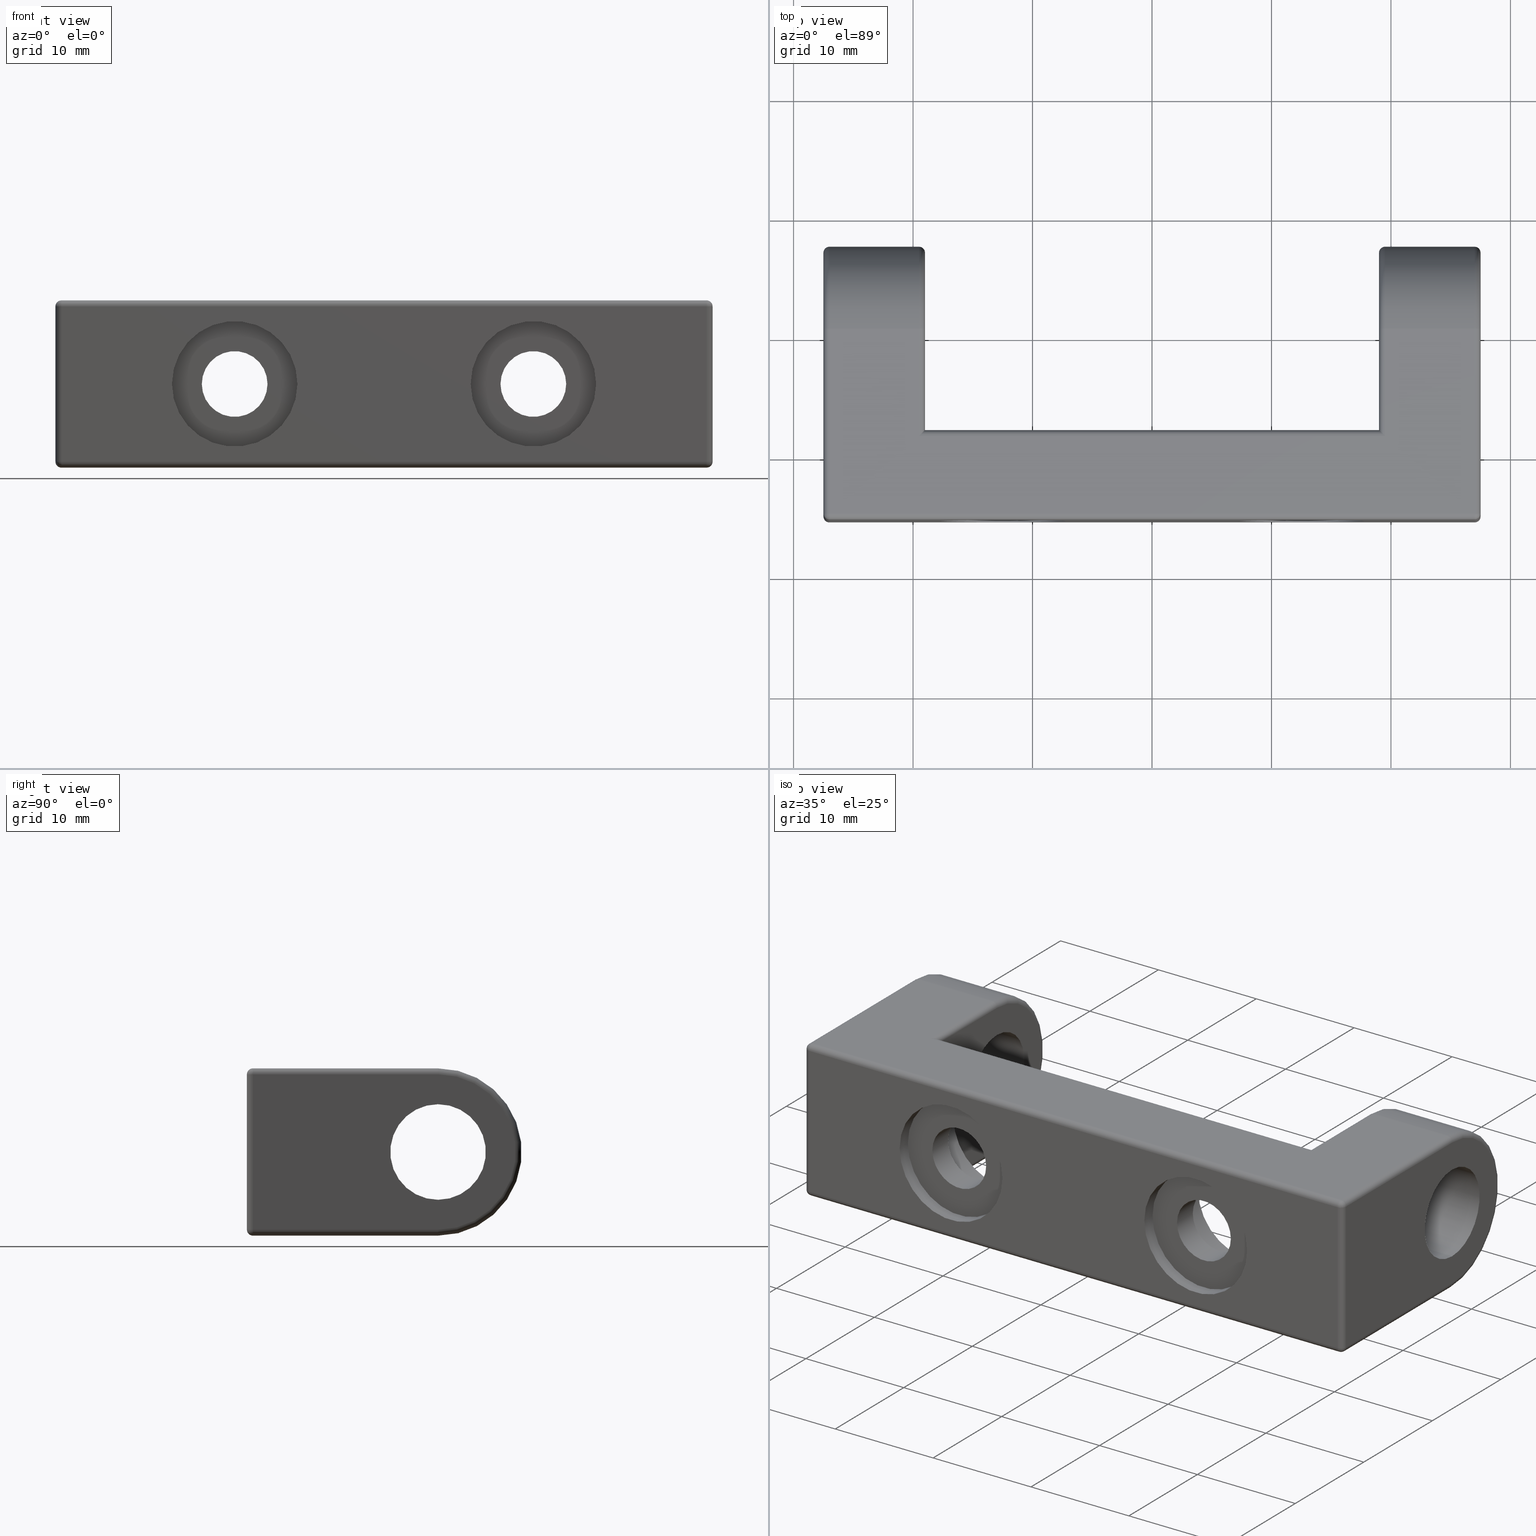
[diagram: canonical four-view strip — front | top / right | iso, engineering-drawing reading convention]
A machine part, canonical four-view strip (front | top / right | iso — engineering-drawing reading convention). The complete STEP part file that produces these views, byte-faithful:
ISO-10303-21;
HEADER;
/* Generated by software containing ST-Developer
 * from STEP Tools, Inc. (www.steptools.com) 
 */

FILE_DESCRIPTION(
/* description */ ('SEMICERNIERA FISSA C.2108 ALL.ANOD.ARG.'),
/* implementation_level */ '2;1');

FILE_NAME(
/* name */ 
'Q:\\Catalogo\\2_Accessori Dierre\\Per Download Web e catalogo cartace
o\\CATALOGO ACCESSORI PER RIPARI\\PAGINA 58\\CCRAA0000012.stp',
/* time_stamp */ '2018-11-08T17:54:37+01:00',
/* author */ ('fzagni'),
/* organization */ (''),
/* preprocessor_version */ 'ST-DEVELOPER v16.1',
/* originating_system */ 'Autodesk Inventor 2016',
/* authorisation */ '');

FILE_SCHEMA (('AUTOMOTIVE_DESIGN { 1 0 10303 214 3 1 1 }'));
ENDSEC;

DATA;
#10=MECHANICAL_DESIGN_GEOMETRIC_PRESENTATION_REPRESENTATION('',(#13),#1141);
#11=SHAPE_REPRESENTATION_RELATIONSHIP('SRR','None',#1150,#12);
#12=ADVANCED_BREP_SHAPE_REPRESENTATION('',(#14),#1140);
#13=STYLED_ITEM('',(#1159),#14);
#14=MANIFOLD_SOLID_BREP('Solido1',#645);
#15=SPHERICAL_SURFACE('',#675,0.499999999999998);
#16=SPHERICAL_SURFACE('',#679,0.500000000000003);
#17=SPHERICAL_SURFACE('',#684,0.499999999999998);
#18=SPHERICAL_SURFACE('',#688,0.499999999999998);
#19=FACE_BOUND('',#110,.T.);
#20=FACE_BOUND('',#112,.T.);
#21=FACE_BOUND('',#113,.T.);
#22=FACE_BOUND('',#130,.T.);
#23=FACE_BOUND('',#132,.T.);
#24=FACE_BOUND('',#134,.T.);
#25=FACE_BOUND('',#135,.T.);
#26=FACE_BOUND('',#137,.T.);
#27=FACE_BOUND('',#139,.T.);
#28=FACE_BOUND('',#141,.T.);
#29=FACE_BOUND('',#143,.T.);
#30=FACE_BOUND('',#145,.T.);
#31=FACE_BOUND('',#147,.T.);
#32=FACE_BOUND('',#149,.T.);
#33=FACE_BOUND('',#151,.T.);
#34=FACE_BOUND('',#153,.T.);
#35=FACE_BOUND('',#155,.T.);
#36=FACE_BOUND('',#157,.T.);
#37=FACE_BOUND('',#160,.T.);
#38=FACE_BOUND('',#162,.T.);
#39=PLANE('',#669);
#40=PLANE('',#670);
#41=PLANE('',#672);
#42=PLANE('',#709);
#43=PLANE('',#711);
#44=PLANE('',#713);
#45=PLANE('',#718);
#46=PLANE('',#722);
#47=PLANE('',#724);
#48=PLANE('',#729);
#49=PLANE('',#734);
#50=PLANE('',#736);
#51=TOROIDAL_SURFACE('',#655,6.5,0.5);
#52=TOROIDAL_SURFACE('',#662,6.5,0.5);
#53=TOROIDAL_SURFACE('',#695,6.5,0.5);
#54=TOROIDAL_SURFACE('',#703,6.5,0.5);
#55=FACE_OUTER_BOUND('',#99,.T.);
#56=FACE_OUTER_BOUND('',#100,.T.);
#57=FACE_OUTER_BOUND('',#101,.T.);
#58=FACE_OUTER_BOUND('',#102,.T.);
#59=FACE_OUTER_BOUND('',#103,.T.);
#60=FACE_OUTER_BOUND('',#104,.T.);
#61=FACE_OUTER_BOUND('',#105,.T.);
#62=FACE_OUTER_BOUND('',#106,.T.);
#63=FACE_OUTER_BOUND('',#107,.T.);
#64=FACE_OUTER_BOUND('',#108,.T.);
#65=FACE_OUTER_BOUND('',#109,.T.);
#66=FACE_OUTER_BOUND('',#111,.T.);
#67=FACE_OUTER_BOUND('',#114,.T.);
#68=FACE_OUTER_BOUND('',#115,.T.);
#69=FACE_OUTER_BOUND('',#116,.T.);
#70=FACE_OUTER_BOUND('',#117,.T.);
#71=FACE_OUTER_BOUND('',#118,.T.);
#72=FACE_OUTER_BOUND('',#119,.T.);
#73=FACE_OUTER_BOUND('',#120,.T.);
#74=FACE_OUTER_BOUND('',#121,.T.);
#75=FACE_OUTER_BOUND('',#122,.T.);
#76=FACE_OUTER_BOUND('',#123,.T.);
#77=FACE_OUTER_BOUND('',#124,.T.);
#78=FACE_OUTER_BOUND('',#125,.T.);
#79=FACE_OUTER_BOUND('',#126,.T.);
#80=FACE_OUTER_BOUND('',#127,.T.);
#81=FACE_OUTER_BOUND('',#128,.T.);
#82=FACE_OUTER_BOUND('',#129,.T.);
#83=FACE_OUTER_BOUND('',#131,.T.);
#84=FACE_OUTER_BOUND('',#133,.T.);
#85=FACE_OUTER_BOUND('',#136,.T.);
#86=FACE_OUTER_BOUND('',#138,.T.);
#87=FACE_OUTER_BOUND('',#140,.T.);
#88=FACE_OUTER_BOUND('',#142,.T.);
#89=FACE_OUTER_BOUND('',#144,.T.);
#90=FACE_OUTER_BOUND('',#146,.T.);
#91=FACE_OUTER_BOUND('',#148,.T.);
#92=FACE_OUTER_BOUND('',#150,.T.);
#93=FACE_OUTER_BOUND('',#152,.T.);
#94=FACE_OUTER_BOUND('',#154,.T.);
#95=FACE_OUTER_BOUND('',#156,.T.);
#96=FACE_OUTER_BOUND('',#158,.T.);
#97=FACE_OUTER_BOUND('',#159,.T.);
#98=FACE_OUTER_BOUND('',#161,.T.);
#99=EDGE_LOOP('',(#413,#414,#415,#416));
#100=EDGE_LOOP('',(#417,#418,#419,#420));
#101=EDGE_LOOP('',(#421,#422,#423,#424));
#102=EDGE_LOOP('',(#425,#426,#427,#428));
#103=EDGE_LOOP('',(#429,#430,#431,#432));
#104=EDGE_LOOP('',(#433,#434,#435,#436));
#105=EDGE_LOOP('',(#437,#438,#439,#440));
#106=EDGE_LOOP('',(#441,#442,#443,#444));
#107=EDGE_LOOP('',(#445,#446,#447,#448));
#108=EDGE_LOOP('',(#449,#450,#451,#452,#453,#454,#455,#456));
#109=EDGE_LOOP('',(#457,#458,#459,#460));
#110=EDGE_LOOP('',(#461));
#111=EDGE_LOOP('',(#462,#463,#464,#465));
#112=EDGE_LOOP('',(#466));
#113=EDGE_LOOP('',(#467));
#114=EDGE_LOOP('',(#468,#469,#470));
#115=EDGE_LOOP('',(#471,#472,#473));
#116=EDGE_LOOP('',(#474,#475,#476,#477));
#117=EDGE_LOOP('',(#478,#479,#480));
#118=EDGE_LOOP('',(#481,#482,#483));
#119=EDGE_LOOP('',(#484,#485,#486,#487));
#120=EDGE_LOOP('',(#488,#489,#490,#491));
#121=EDGE_LOOP('',(#492,#493,#494,#495));
#122=EDGE_LOOP('',(#496,#497,#498,#499));
#123=EDGE_LOOP('',(#500,#501,#502,#503));
#124=EDGE_LOOP('',(#504,#505,#506,#507));
#125=EDGE_LOOP('',(#508,#509,#510,#511));
#126=EDGE_LOOP('',(#512,#513,#514,#515));
#127=EDGE_LOOP('',(#516,#517,#518,#519));
#128=EDGE_LOOP('',(#520,#521,#522,#523));
#129=EDGE_LOOP('',(#524,#525,#526,#527));
#130=EDGE_LOOP('',(#528));
#131=EDGE_LOOP('',(#529,#530,#531,#532));
#132=EDGE_LOOP('',(#533));
#133=EDGE_LOOP('',(#534,#535,#536,#537));
#134=EDGE_LOOP('',(#538));
#135=EDGE_LOOP('',(#539));
#136=EDGE_LOOP('',(#540));
#137=EDGE_LOOP('',(#541));
#138=EDGE_LOOP('',(#542));
#139=EDGE_LOOP('',(#543));
#140=EDGE_LOOP('',(#544));
#141=EDGE_LOOP('',(#545));
#142=EDGE_LOOP('',(#546));
#143=EDGE_LOOP('',(#547));
#144=EDGE_LOOP('',(#548));
#145=EDGE_LOOP('',(#549));
#146=EDGE_LOOP('',(#550));
#147=EDGE_LOOP('',(#551));
#148=EDGE_LOOP('',(#552));
#149=EDGE_LOOP('',(#553));
#150=EDGE_LOOP('',(#554));
#151=EDGE_LOOP('',(#555));
#152=EDGE_LOOP('',(#556));
#153=EDGE_LOOP('',(#557));
#154=EDGE_LOOP('',(#558));
#155=EDGE_LOOP('',(#559));
#156=EDGE_LOOP('',(#560,#561,#562,#563));
#157=EDGE_LOOP('',(#564));
#158=EDGE_LOOP('',(#565,#566,#567,#568,#569,#570,#571,#572));
#159=EDGE_LOOP('',(#573));
#160=EDGE_LOOP('',(#574));
#161=EDGE_LOOP('',(#575));
#162=EDGE_LOOP('',(#576));
#163=ELLIPSE('',#649,0.707106781186547,0.5);
#164=ELLIPSE('',#651,0.707106781186546,0.5);
#165=ELLIPSE('',#654,0.707106781186548,0.5);
#166=ELLIPSE('',#661,0.707106781186546,0.5);
#167=CIRCLE('',#648,0.5);
#168=CIRCLE('',#653,0.5);
#169=CIRCLE('',#656,0.500000000000003);
#170=CIRCLE('',#657,7.);
#171=CIRCLE('',#658,6.5);
#172=CIRCLE('',#663,0.5);
#173=CIRCLE('',#664,7.);
#174=CIRCLE('',#665,6.5);
#175=CIRCLE('',#668,7.);
#176=CIRCLE('',#671,4.);
#177=CIRCLE('',#673,5.);
#178=CIRCLE('',#674,5.);
#179=CIRCLE('',#676,0.5);
#180=CIRCLE('',#677,0.499999999999998);
#181=CIRCLE('',#678,0.5);
#182=CIRCLE('',#680,0.499999999999998);
#183=CIRCLE('',#681,0.500000000000003);
#184=CIRCLE('',#682,0.5);
#185=CIRCLE('',#685,0.499999999999998);
#186=CIRCLE('',#686,0.499999999999998);
#187=CIRCLE('',#687,0.5);
#188=CIRCLE('',#689,0.5);
#189=CIRCLE('',#690,0.499999999999998);
#190=CIRCLE('',#691,0.5);
#191=CIRCLE('',#694,0.499999999999998);
#192=CIRCLE('',#696,0.500000000000003);
#193=CIRCLE('',#697,6.5);
#194=CIRCLE('',#702,0.499999999999998);
#195=CIRCLE('',#704,0.499999999999998);
#196=CIRCLE('',#705,7.);
#197=CIRCLE('',#706,6.5);
#198=CIRCLE('',#710,4.);
#199=CIRCLE('',#712,4.);
#200=CIRCLE('',#714,5.25);
#201=CIRCLE('',#715,5.25);
#202=CIRCLE('',#717,5.25);
#203=CIRCLE('',#719,2.75);
#204=CIRCLE('',#721,5.25);
#205=CIRCLE('',#723,2.75);
#206=CIRCLE('',#725,5.);
#207=CIRCLE('',#726,2.75);
#208=CIRCLE('',#730,5.);
#209=CIRCLE('',#731,2.75);
#210=CIRCLE('',#735,4.);
#211=LINE('',#963,#245);
#212=LINE('',#967,#246);
#213=LINE('',#971,#247);
#214=LINE('',#974,#248);
#215=LINE('',#978,#249);
#216=LINE('',#982,#250);
#217=LINE('',#991,#251);
#218=LINE('',#992,#252);
#219=LINE('',#995,#253);
#220=LINE('',#997,#254);
#221=LINE('',#1006,#255);
#222=LINE('',#1007,#256);
#223=LINE('',#1010,#257);
#224=LINE('',#1013,#258);
#225=LINE('',#1016,#259);
#226=LINE('',#1018,#260);
#227=LINE('',#1020,#261);
#228=LINE('',#1021,#262);
#229=LINE('',#1023,#263);
#230=LINE('',#1027,#264);
#231=LINE('',#1046,#265);
#232=LINE('',#1047,#266);
#233=LINE('',#1062,#267);
#234=LINE('',#1063,#268);
#235=LINE('',#1067,#269);
#236=LINE('',#1073,#270);
#237=LINE('',#1074,#271);
#238=LINE('',#1076,#272);
#239=LINE('',#1078,#273);
#240=LINE('',#1079,#274);
#241=LINE('',#1084,#275);
#242=LINE('',#1085,#276);
#243=LINE('',#1092,#277);
#244=LINE('',#1094,#278);
#245=VECTOR('',#743,8.50000000000003);
#246=VECTOR('',#746,9.00000000000003);
#247=VECTOR('',#751,39.);
#248=VECTOR('',#754,38.);
#249=VECTOR('',#757,8.50000000000001);
#250=VECTOR('',#760,9.00000000000001);
#251=VECTOR('',#773,9.00000000000001);
#252=VECTOR('',#774,8.50000000000001);
#253=VECTOR('',#777,38.);
#254=VECTOR('',#778,39.);
#255=VECTOR('',#791,9.00000000000003);
#256=VECTOR('',#792,8.50000000000003);
#257=VECTOR('',#795,7.5);
#258=VECTOR('',#798,7.5);
#259=VECTOR('',#801,7.5);
#260=VECTOR('',#802,15.5);
#261=VECTOR('',#803,54.);
#262=VECTOR('',#804,15.5);
#263=VECTOR('',#807,13.);
#264=VECTOR('',#812,13.);
#265=VECTOR('',#835,13.);
#266=VECTOR('',#836,13.);
#267=VECTOR('',#855,13.);
#268=VECTOR('',#856,13.);
#269=VECTOR('',#861,15.5);
#270=VECTOR('',#870,15.5);
#271=VECTOR('',#871,15.5);
#272=VECTOR('',#874,54.);
#273=VECTOR('',#877,54.);
#274=VECTOR('',#878,54.);
#275=VECTOR('',#883,15.5);
#276=VECTOR('',#884,15.5);
#277=VECTOR('',#895,15.5);
#278=VECTOR('',#898,7.5);
#279=VERTEX_POINT('',#961);
#280=VERTEX_POINT('',#962);
#281=VERTEX_POINT('',#964);
#282=VERTEX_POINT('',#966);
#283=VERTEX_POINT('',#970);
#284=VERTEX_POINT('',#972);
#285=VERTEX_POINT('',#976);
#286=VERTEX_POINT('',#977);
#287=VERTEX_POINT('',#979);
#288=VERTEX_POINT('',#981);
#289=VERTEX_POINT('',#985);
#290=VERTEX_POINT('',#986);
#291=VERTEX_POINT('',#994);
#292=VERTEX_POINT('',#996);
#293=VERTEX_POINT('',#1000);
#294=VERTEX_POINT('',#1001);
#295=VERTEX_POINT('',#1009);
#296=VERTEX_POINT('',#1011);
#297=VERTEX_POINT('',#1015);
#298=VERTEX_POINT('',#1017);
#299=VERTEX_POINT('',#1019);
#300=VERTEX_POINT('',#1024);
#301=VERTEX_POINT('',#1028);
#302=VERTEX_POINT('',#1030);
#303=VERTEX_POINT('',#1033);
#304=VERTEX_POINT('',#1034);
#305=VERTEX_POINT('',#1036);
#306=VERTEX_POINT('',#1040);
#307=VERTEX_POINT('',#1042);
#308=VERTEX_POINT('',#1049);
#309=VERTEX_POINT('',#1050);
#310=VERTEX_POINT('',#1052);
#311=VERTEX_POINT('',#1056);
#312=VERTEX_POINT('',#1058);
#313=VERTEX_POINT('',#1065);
#314=VERTEX_POINT('',#1069);
#315=VERTEX_POINT('',#1081);
#316=VERTEX_POINT('',#1082);
#317=VERTEX_POINT('',#1087);
#318=VERTEX_POINT('',#1096);
#319=VERTEX_POINT('',#1099);
#320=VERTEX_POINT('',#1102);
#321=VERTEX_POINT('',#1104);
#322=VERTEX_POINT('',#1107);
#323=VERTEX_POINT('',#1110);
#324=VERTEX_POINT('',#1113);
#325=VERTEX_POINT('',#1116);
#326=VERTEX_POINT('',#1119);
#327=VERTEX_POINT('',#1121);
#328=VERTEX_POINT('',#1126);
#329=VERTEX_POINT('',#1128);
#330=VERTEX_POINT('',#1133);
#331=EDGE_CURVE('',#279,#280,#211,.T.);
#332=EDGE_CURVE('',#280,#281,#167,.T.);
#333=EDGE_CURVE('',#281,#282,#212,.T.);
#334=EDGE_CURVE('',#282,#279,#163,.T.);
#335=EDGE_CURVE('',#282,#283,#213,.T.);
#336=EDGE_CURVE('',#283,#284,#164,.T.);
#337=EDGE_CURVE('',#284,#279,#214,.T.);
#338=EDGE_CURVE('',#285,#286,#215,.T.);
#339=EDGE_CURVE('',#286,#287,#168,.T.);
#340=EDGE_CURVE('',#287,#288,#216,.T.);
#341=EDGE_CURVE('',#288,#285,#165,.T.);
#342=EDGE_CURVE('',#289,#290,#169,.T.);
#343=EDGE_CURVE('',#290,#287,#170,.T.);
#344=EDGE_CURVE('',#286,#289,#171,.T.);
#345=EDGE_CURVE('',#283,#290,#217,.T.);
#346=EDGE_CURVE('',#289,#284,#218,.T.);
#347=EDGE_CURVE('',#291,#285,#219,.T.);
#348=EDGE_CURVE('',#288,#292,#220,.T.);
#349=EDGE_CURVE('',#292,#291,#166,.T.);
#350=EDGE_CURVE('',#293,#294,#172,.T.);
#351=EDGE_CURVE('',#294,#281,#173,.T.);
#352=EDGE_CURVE('',#280,#293,#174,.T.);
#353=EDGE_CURVE('',#292,#294,#221,.T.);
#354=EDGE_CURVE('',#293,#291,#222,.T.);
#355=EDGE_CURVE('',#295,#294,#223,.T.);
#356=EDGE_CURVE('',#296,#295,#175,.T.);
#357=EDGE_CURVE('',#296,#281,#224,.T.);
#358=EDGE_CURVE('',#287,#297,#225,.T.);
#359=EDGE_CURVE('',#298,#297,#226,.T.);
#360=EDGE_CURVE('',#299,#298,#227,.T.);
#361=EDGE_CURVE('',#295,#299,#228,.T.);
#362=EDGE_CURVE('',#284,#285,#229,.T.);
#363=EDGE_CURVE('',#300,#300,#176,.T.);
#364=EDGE_CURVE('',#279,#291,#230,.T.);
#365=EDGE_CURVE('',#301,#301,#177,.T.);
#366=EDGE_CURVE('',#302,#302,#178,.T.);
#367=EDGE_CURVE('',#303,#304,#179,.F.);
#368=EDGE_CURVE('',#305,#303,#180,.F.);
#369=EDGE_CURVE('',#304,#305,#181,.F.);
#370=EDGE_CURVE('',#306,#298,#182,.F.);
#371=EDGE_CURVE('',#307,#306,#183,.F.);
#372=EDGE_CURVE('',#298,#307,#184,.F.);
#373=EDGE_CURVE('',#303,#307,#231,.T.);
#374=EDGE_CURVE('',#306,#305,#232,.T.);
#375=EDGE_CURVE('',#308,#309,#185,.F.);
#376=EDGE_CURVE('',#310,#308,#186,.F.);
#377=EDGE_CURVE('',#309,#310,#187,.F.);
#378=EDGE_CURVE('',#311,#299,#188,.F.);
#379=EDGE_CURVE('',#312,#311,#189,.F.);
#380=EDGE_CURVE('',#299,#312,#190,.F.);
#381=EDGE_CURVE('',#311,#310,#233,.T.);
#382=EDGE_CURVE('',#308,#312,#234,.T.);
#383=EDGE_CURVE('',#313,#295,#191,.T.);
#384=EDGE_CURVE('',#312,#313,#235,.T.);
#385=EDGE_CURVE('',#314,#296,#192,.T.);
#386=EDGE_CURVE('',#313,#314,#193,.T.);
#387=EDGE_CURVE('',#309,#296,#236,.T.);
#388=EDGE_CURVE('',#314,#308,#237,.T.);
#389=EDGE_CURVE('',#307,#311,#238,.T.);
#390=EDGE_CURVE('',#304,#309,#239,.T.);
#391=EDGE_CURVE('',#310,#303,#240,.T.);
#392=EDGE_CURVE('',#315,#316,#194,.T.);
#393=EDGE_CURVE('',#316,#304,#241,.T.);
#394=EDGE_CURVE('',#305,#315,#242,.T.);
#395=EDGE_CURVE('',#317,#297,#195,.T.);
#396=EDGE_CURVE('',#297,#316,#196,.T.);
#397=EDGE_CURVE('',#315,#317,#197,.T.);
#398=EDGE_CURVE('',#317,#306,#243,.T.);
#399=EDGE_CURVE('',#290,#316,#244,.T.);
#400=EDGE_CURVE('',#318,#318,#198,.T.);
#401=EDGE_CURVE('',#319,#319,#199,.T.);
#402=EDGE_CURVE('',#320,#320,#200,.T.);
#403=EDGE_CURVE('',#321,#321,#201,.T.);
#404=EDGE_CURVE('',#322,#322,#202,.T.);
#405=EDGE_CURVE('',#323,#323,#203,.T.);
#406=EDGE_CURVE('',#324,#324,#204,.T.);
#407=EDGE_CURVE('',#325,#325,#205,.T.);
#408=EDGE_CURVE('',#326,#326,#206,.T.);
#409=EDGE_CURVE('',#327,#327,#207,.T.);
#410=EDGE_CURVE('',#328,#328,#208,.T.);
#411=EDGE_CURVE('',#329,#329,#209,.T.);
#412=EDGE_CURVE('',#330,#330,#210,.T.);
#413=ORIENTED_EDGE('',*,*,#331,.T.);
#414=ORIENTED_EDGE('',*,*,#332,.T.);
#415=ORIENTED_EDGE('',*,*,#333,.T.);
#416=ORIENTED_EDGE('',*,*,#334,.T.);
#417=ORIENTED_EDGE('',*,*,#335,.T.);
#418=ORIENTED_EDGE('',*,*,#336,.T.);
#419=ORIENTED_EDGE('',*,*,#337,.T.);
#420=ORIENTED_EDGE('',*,*,#334,.F.);
#421=ORIENTED_EDGE('',*,*,#338,.T.);
#422=ORIENTED_EDGE('',*,*,#339,.T.);
#423=ORIENTED_EDGE('',*,*,#340,.T.);
#424=ORIENTED_EDGE('',*,*,#341,.T.);
#425=ORIENTED_EDGE('',*,*,#342,.T.);
#426=ORIENTED_EDGE('',*,*,#343,.T.);
#427=ORIENTED_EDGE('',*,*,#339,.F.);
#428=ORIENTED_EDGE('',*,*,#344,.T.);
#429=ORIENTED_EDGE('',*,*,#345,.T.);
#430=ORIENTED_EDGE('',*,*,#342,.F.);
#431=ORIENTED_EDGE('',*,*,#346,.T.);
#432=ORIENTED_EDGE('',*,*,#336,.F.);
#433=ORIENTED_EDGE('',*,*,#347,.T.);
#434=ORIENTED_EDGE('',*,*,#341,.F.);
#435=ORIENTED_EDGE('',*,*,#348,.T.);
#436=ORIENTED_EDGE('',*,*,#349,.T.);
#437=ORIENTED_EDGE('',*,*,#350,.T.);
#438=ORIENTED_EDGE('',*,*,#351,.T.);
#439=ORIENTED_EDGE('',*,*,#332,.F.);
#440=ORIENTED_EDGE('',*,*,#352,.T.);
#441=ORIENTED_EDGE('',*,*,#353,.T.);
#442=ORIENTED_EDGE('',*,*,#350,.F.);
#443=ORIENTED_EDGE('',*,*,#354,.T.);
#444=ORIENTED_EDGE('',*,*,#349,.F.);
#445=ORIENTED_EDGE('',*,*,#351,.F.);
#446=ORIENTED_EDGE('',*,*,#355,.F.);
#447=ORIENTED_EDGE('',*,*,#356,.F.);
#448=ORIENTED_EDGE('',*,*,#357,.T.);
#449=ORIENTED_EDGE('',*,*,#353,.F.);
#450=ORIENTED_EDGE('',*,*,#348,.F.);
#451=ORIENTED_EDGE('',*,*,#340,.F.);
#452=ORIENTED_EDGE('',*,*,#358,.T.);
#453=ORIENTED_EDGE('',*,*,#359,.F.);
#454=ORIENTED_EDGE('',*,*,#360,.F.);
#455=ORIENTED_EDGE('',*,*,#361,.F.);
#456=ORIENTED_EDGE('',*,*,#355,.T.);
#457=ORIENTED_EDGE('',*,*,#346,.F.);
#458=ORIENTED_EDGE('',*,*,#344,.F.);
#459=ORIENTED_EDGE('',*,*,#338,.F.);
#460=ORIENTED_EDGE('',*,*,#362,.F.);
#461=ORIENTED_EDGE('',*,*,#363,.T.);
#462=ORIENTED_EDGE('',*,*,#337,.F.);
#463=ORIENTED_EDGE('',*,*,#362,.T.);
#464=ORIENTED_EDGE('',*,*,#347,.F.);
#465=ORIENTED_EDGE('',*,*,#364,.F.);
#466=ORIENTED_EDGE('',*,*,#365,.T.);
#467=ORIENTED_EDGE('',*,*,#366,.T.);
#468=ORIENTED_EDGE('',*,*,#367,.F.);
#469=ORIENTED_EDGE('',*,*,#368,.F.);
#470=ORIENTED_EDGE('',*,*,#369,.F.);
#471=ORIENTED_EDGE('',*,*,#370,.F.);
#472=ORIENTED_EDGE('',*,*,#371,.F.);
#473=ORIENTED_EDGE('',*,*,#372,.F.);
#474=ORIENTED_EDGE('',*,*,#368,.T.);
#475=ORIENTED_EDGE('',*,*,#373,.T.);
#476=ORIENTED_EDGE('',*,*,#371,.T.);
#477=ORIENTED_EDGE('',*,*,#374,.T.);
#478=ORIENTED_EDGE('',*,*,#375,.F.);
#479=ORIENTED_EDGE('',*,*,#376,.F.);
#480=ORIENTED_EDGE('',*,*,#377,.F.);
#481=ORIENTED_EDGE('',*,*,#378,.F.);
#482=ORIENTED_EDGE('',*,*,#379,.F.);
#483=ORIENTED_EDGE('',*,*,#380,.F.);
#484=ORIENTED_EDGE('',*,*,#379,.T.);
#485=ORIENTED_EDGE('',*,*,#381,.T.);
#486=ORIENTED_EDGE('',*,*,#376,.T.);
#487=ORIENTED_EDGE('',*,*,#382,.T.);
#488=ORIENTED_EDGE('',*,*,#383,.T.);
#489=ORIENTED_EDGE('',*,*,#361,.T.);
#490=ORIENTED_EDGE('',*,*,#380,.T.);
#491=ORIENTED_EDGE('',*,*,#384,.T.);
#492=ORIENTED_EDGE('',*,*,#385,.T.);
#493=ORIENTED_EDGE('',*,*,#356,.T.);
#494=ORIENTED_EDGE('',*,*,#383,.F.);
#495=ORIENTED_EDGE('',*,*,#386,.T.);
#496=ORIENTED_EDGE('',*,*,#375,.T.);
#497=ORIENTED_EDGE('',*,*,#387,.T.);
#498=ORIENTED_EDGE('',*,*,#385,.F.);
#499=ORIENTED_EDGE('',*,*,#388,.T.);
#500=ORIENTED_EDGE('',*,*,#378,.T.);
#501=ORIENTED_EDGE('',*,*,#360,.T.);
#502=ORIENTED_EDGE('',*,*,#372,.T.);
#503=ORIENTED_EDGE('',*,*,#389,.T.);
#504=ORIENTED_EDGE('',*,*,#367,.T.);
#505=ORIENTED_EDGE('',*,*,#390,.T.);
#506=ORIENTED_EDGE('',*,*,#377,.T.);
#507=ORIENTED_EDGE('',*,*,#391,.T.);
#508=ORIENTED_EDGE('',*,*,#392,.T.);
#509=ORIENTED_EDGE('',*,*,#393,.T.);
#510=ORIENTED_EDGE('',*,*,#369,.T.);
#511=ORIENTED_EDGE('',*,*,#394,.T.);
#512=ORIENTED_EDGE('',*,*,#395,.T.);
#513=ORIENTED_EDGE('',*,*,#396,.T.);
#514=ORIENTED_EDGE('',*,*,#392,.F.);
#515=ORIENTED_EDGE('',*,*,#397,.T.);
#516=ORIENTED_EDGE('',*,*,#370,.T.);
#517=ORIENTED_EDGE('',*,*,#359,.T.);
#518=ORIENTED_EDGE('',*,*,#395,.F.);
#519=ORIENTED_EDGE('',*,*,#398,.T.);
#520=ORIENTED_EDGE('',*,*,#343,.F.);
#521=ORIENTED_EDGE('',*,*,#399,.T.);
#522=ORIENTED_EDGE('',*,*,#396,.F.);
#523=ORIENTED_EDGE('',*,*,#358,.F.);
#524=ORIENTED_EDGE('',*,*,#374,.F.);
#525=ORIENTED_EDGE('',*,*,#398,.F.);
#526=ORIENTED_EDGE('',*,*,#397,.F.);
#527=ORIENTED_EDGE('',*,*,#394,.F.);
#528=ORIENTED_EDGE('',*,*,#400,.T.);
#529=ORIENTED_EDGE('',*,*,#382,.F.);
#530=ORIENTED_EDGE('',*,*,#388,.F.);
#531=ORIENTED_EDGE('',*,*,#386,.F.);
#532=ORIENTED_EDGE('',*,*,#384,.F.);
#533=ORIENTED_EDGE('',*,*,#401,.T.);
#534=ORIENTED_EDGE('',*,*,#381,.F.);
#535=ORIENTED_EDGE('',*,*,#389,.F.);
#536=ORIENTED_EDGE('',*,*,#373,.F.);
#537=ORIENTED_EDGE('',*,*,#391,.F.);
#538=ORIENTED_EDGE('',*,*,#402,.T.);
#539=ORIENTED_EDGE('',*,*,#403,.T.);
#540=ORIENTED_EDGE('',*,*,#404,.T.);
#541=ORIENTED_EDGE('',*,*,#403,.F.);
#542=ORIENTED_EDGE('',*,*,#404,.F.);
#543=ORIENTED_EDGE('',*,*,#405,.F.);
#544=ORIENTED_EDGE('',*,*,#406,.T.);
#545=ORIENTED_EDGE('',*,*,#402,.F.);
#546=ORIENTED_EDGE('',*,*,#406,.F.);
#547=ORIENTED_EDGE('',*,*,#407,.F.);
#548=ORIENTED_EDGE('',*,*,#408,.T.);
#549=ORIENTED_EDGE('',*,*,#409,.F.);
#550=ORIENTED_EDGE('',*,*,#366,.F.);
#551=ORIENTED_EDGE('',*,*,#408,.F.);
#552=ORIENTED_EDGE('',*,*,#405,.T.);
#553=ORIENTED_EDGE('',*,*,#409,.T.);
#554=ORIENTED_EDGE('',*,*,#410,.T.);
#555=ORIENTED_EDGE('',*,*,#411,.F.);
#556=ORIENTED_EDGE('',*,*,#365,.F.);
#557=ORIENTED_EDGE('',*,*,#410,.F.);
#558=ORIENTED_EDGE('',*,*,#407,.T.);
#559=ORIENTED_EDGE('',*,*,#411,.T.);
#560=ORIENTED_EDGE('',*,*,#331,.F.);
#561=ORIENTED_EDGE('',*,*,#364,.T.);
#562=ORIENTED_EDGE('',*,*,#354,.F.);
#563=ORIENTED_EDGE('',*,*,#352,.F.);
#564=ORIENTED_EDGE('',*,*,#412,.T.);
#565=ORIENTED_EDGE('',*,*,#333,.F.);
#566=ORIENTED_EDGE('',*,*,#357,.F.);
#567=ORIENTED_EDGE('',*,*,#387,.F.);
#568=ORIENTED_EDGE('',*,*,#390,.F.);
#569=ORIENTED_EDGE('',*,*,#393,.F.);
#570=ORIENTED_EDGE('',*,*,#399,.F.);
#571=ORIENTED_EDGE('',*,*,#345,.F.);
#572=ORIENTED_EDGE('',*,*,#335,.F.);
#573=ORIENTED_EDGE('',*,*,#401,.F.);
#574=ORIENTED_EDGE('',*,*,#412,.F.);
#575=ORIENTED_EDGE('',*,*,#363,.F.);
#576=ORIENTED_EDGE('',*,*,#400,.F.);
#577=CYLINDRICAL_SURFACE('',#647,0.5);
#578=CYLINDRICAL_SURFACE('',#650,0.5);
#579=CYLINDRICAL_SURFACE('',#652,0.5);
#580=CYLINDRICAL_SURFACE('',#659,0.5);
#581=CYLINDRICAL_SURFACE('',#660,0.5);
#582=CYLINDRICAL_SURFACE('',#666,0.5);
#583=CYLINDRICAL_SURFACE('',#667,7.);
#584=CYLINDRICAL_SURFACE('',#683,0.5);
#585=CYLINDRICAL_SURFACE('',#692,0.5);
#586=CYLINDRICAL_SURFACE('',#693,0.5);
#587=CYLINDRICAL_SURFACE('',#698,0.5);
#588=CYLINDRICAL_SURFACE('',#699,0.5);
#589=CYLINDRICAL_SURFACE('',#700,0.5);
#590=CYLINDRICAL_SURFACE('',#701,0.5);
#591=CYLINDRICAL_SURFACE('',#707,0.5);
#592=CYLINDRICAL_SURFACE('',#708,7.);
#593=CYLINDRICAL_SURFACE('',#716,5.25);
#594=CYLINDRICAL_SURFACE('',#720,5.25);
#595=CYLINDRICAL_SURFACE('',#727,5.);
#596=CYLINDRICAL_SURFACE('',#728,2.75);
#597=CYLINDRICAL_SURFACE('',#732,5.);
#598=CYLINDRICAL_SURFACE('',#733,2.75);
#599=CYLINDRICAL_SURFACE('',#737,4.);
#600=CYLINDRICAL_SURFACE('',#738,4.);
#601=ADVANCED_FACE('',(#55),#577,.T.);
#602=ADVANCED_FACE('',(#56),#578,.T.);
#603=ADVANCED_FACE('',(#57),#579,.T.);
#604=ADVANCED_FACE('',(#58),#51,.T.);
#605=ADVANCED_FACE('',(#59),#580,.T.);
#606=ADVANCED_FACE('',(#60),#581,.T.);
#607=ADVANCED_FACE('',(#61),#52,.T.);
#608=ADVANCED_FACE('',(#62),#582,.T.);
#609=ADVANCED_FACE('',(#63),#583,.T.);
#610=ADVANCED_FACE('',(#64),#39,.T.);
#611=ADVANCED_FACE('',(#65,#19),#40,.T.);
#612=ADVANCED_FACE('',(#66,#20,#21),#41,.T.);
#613=ADVANCED_FACE('',(#67),#15,.T.);
#614=ADVANCED_FACE('',(#68),#16,.T.);
#615=ADVANCED_FACE('',(#69),#584,.T.);
#616=ADVANCED_FACE('',(#70),#17,.T.);
#617=ADVANCED_FACE('',(#71),#18,.T.);
#618=ADVANCED_FACE('',(#72),#585,.T.);
#619=ADVANCED_FACE('',(#73),#586,.T.);
#620=ADVANCED_FACE('',(#74),#53,.T.);
#621=ADVANCED_FACE('',(#75),#587,.T.);
#622=ADVANCED_FACE('',(#76),#588,.T.);
#623=ADVANCED_FACE('',(#77),#589,.T.);
#624=ADVANCED_FACE('',(#78),#590,.T.);
#625=ADVANCED_FACE('',(#79),#54,.T.);
#626=ADVANCED_FACE('',(#80),#591,.T.);
#627=ADVANCED_FACE('',(#81),#592,.T.);
#628=ADVANCED_FACE('',(#82,#22),#42,.T.);
#629=ADVANCED_FACE('',(#83,#23),#43,.T.);
#630=ADVANCED_FACE('',(#84,#24,#25),#44,.T.);
#631=ADVANCED_FACE('',(#85,#26),#593,.F.);
#632=ADVANCED_FACE('',(#86,#27),#45,.F.);
#633=ADVANCED_FACE('',(#87,#28),#594,.F.);
#634=ADVANCED_FACE('',(#88,#29),#46,.F.);
#635=ADVANCED_FACE('',(#89,#30),#47,.T.);
#636=ADVANCED_FACE('',(#90,#31),#595,.F.);
#637=ADVANCED_FACE('',(#91,#32),#596,.F.);
#638=ADVANCED_FACE('',(#92,#33),#48,.T.);
#639=ADVANCED_FACE('',(#93,#34),#597,.F.);
#640=ADVANCED_FACE('',(#94,#35),#598,.F.);
#641=ADVANCED_FACE('',(#95,#36),#49,.T.);
#642=ADVANCED_FACE('',(#96),#50,.F.);
#643=ADVANCED_FACE('',(#97,#37),#599,.F.);
#644=ADVANCED_FACE('',(#98,#38),#600,.F.);
#645=CLOSED_SHELL('',(#601,#602,#603,#604,#605,#606,#607,#608,#609,#610,
#611,#612,#613,#614,#615,#616,#617,#618,#619,#620,#621,#622,#623,#624,#625,
#626,#627,#628,#629,#630,#631,#632,#633,#634,#635,#636,#637,#638,#639,#640,
#641,#642,#643,#644));
#646=AXIS2_PLACEMENT_3D('placement',#959,#739,#740);
#647=AXIS2_PLACEMENT_3D('',#960,#741,#742);
#648=AXIS2_PLACEMENT_3D('',#965,#744,#745);
#649=AXIS2_PLACEMENT_3D('',#968,#747,#748);
#650=AXIS2_PLACEMENT_3D('',#969,#749,#750);
#651=AXIS2_PLACEMENT_3D('',#973,#752,#753);
#652=AXIS2_PLACEMENT_3D('',#975,#755,#756);
#653=AXIS2_PLACEMENT_3D('',#980,#758,#759);
#654=AXIS2_PLACEMENT_3D('',#983,#761,#762);
#655=AXIS2_PLACEMENT_3D('',#984,#763,#764);
#656=AXIS2_PLACEMENT_3D('',#987,#765,#766);
#657=AXIS2_PLACEMENT_3D('',#988,#767,#768);
#658=AXIS2_PLACEMENT_3D('',#989,#769,#770);
#659=AXIS2_PLACEMENT_3D('',#990,#771,#772);
#660=AXIS2_PLACEMENT_3D('',#993,#775,#776);
#661=AXIS2_PLACEMENT_3D('',#998,#779,#780);
#662=AXIS2_PLACEMENT_3D('',#999,#781,#782);
#663=AXIS2_PLACEMENT_3D('',#1002,#783,#784);
#664=AXIS2_PLACEMENT_3D('',#1003,#785,#786);
#665=AXIS2_PLACEMENT_3D('',#1004,#787,#788);
#666=AXIS2_PLACEMENT_3D('',#1005,#789,#790);
#667=AXIS2_PLACEMENT_3D('',#1008,#793,#794);
#668=AXIS2_PLACEMENT_3D('',#1012,#796,#797);
#669=AXIS2_PLACEMENT_3D('',#1014,#799,#800);
#670=AXIS2_PLACEMENT_3D('',#1022,#805,#806);
#671=AXIS2_PLACEMENT_3D('',#1025,#808,#809);
#672=AXIS2_PLACEMENT_3D('',#1026,#810,#811);
#673=AXIS2_PLACEMENT_3D('',#1029,#813,#814);
#674=AXIS2_PLACEMENT_3D('',#1031,#815,#816);
#675=AXIS2_PLACEMENT_3D('',#1032,#817,#818);
#676=AXIS2_PLACEMENT_3D('',#1035,#819,#820);
#677=AXIS2_PLACEMENT_3D('',#1037,#821,#822);
#678=AXIS2_PLACEMENT_3D('',#1038,#823,#824);
#679=AXIS2_PLACEMENT_3D('',#1039,#825,#826);
#680=AXIS2_PLACEMENT_3D('',#1041,#827,#828);
#681=AXIS2_PLACEMENT_3D('',#1043,#829,#830);
#682=AXIS2_PLACEMENT_3D('',#1044,#831,#832);
#683=AXIS2_PLACEMENT_3D('',#1045,#833,#834);
#684=AXIS2_PLACEMENT_3D('',#1048,#837,#838);
#685=AXIS2_PLACEMENT_3D('',#1051,#839,#840);
#686=AXIS2_PLACEMENT_3D('',#1053,#841,#842);
#687=AXIS2_PLACEMENT_3D('',#1054,#843,#844);
#688=AXIS2_PLACEMENT_3D('',#1055,#845,#846);
#689=AXIS2_PLACEMENT_3D('',#1057,#847,#848);
#690=AXIS2_PLACEMENT_3D('',#1059,#849,#850);
#691=AXIS2_PLACEMENT_3D('',#1060,#851,#852);
#692=AXIS2_PLACEMENT_3D('',#1061,#853,#854);
#693=AXIS2_PLACEMENT_3D('',#1064,#857,#858);
#694=AXIS2_PLACEMENT_3D('',#1066,#859,#860);
#695=AXIS2_PLACEMENT_3D('',#1068,#862,#863);
#696=AXIS2_PLACEMENT_3D('',#1070,#864,#865);
#697=AXIS2_PLACEMENT_3D('',#1071,#866,#867);
#698=AXIS2_PLACEMENT_3D('',#1072,#868,#869);
#699=AXIS2_PLACEMENT_3D('',#1075,#872,#873);
#700=AXIS2_PLACEMENT_3D('',#1077,#875,#876);
#701=AXIS2_PLACEMENT_3D('',#1080,#879,#880);
#702=AXIS2_PLACEMENT_3D('',#1083,#881,#882);
#703=AXIS2_PLACEMENT_3D('',#1086,#885,#886);
#704=AXIS2_PLACEMENT_3D('',#1088,#887,#888);
#705=AXIS2_PLACEMENT_3D('',#1089,#889,#890);
#706=AXIS2_PLACEMENT_3D('',#1090,#891,#892);
#707=AXIS2_PLACEMENT_3D('',#1091,#893,#894);
#708=AXIS2_PLACEMENT_3D('',#1093,#896,#897);
#709=AXIS2_PLACEMENT_3D('',#1095,#899,#900);
#710=AXIS2_PLACEMENT_3D('',#1097,#901,#902);
#711=AXIS2_PLACEMENT_3D('',#1098,#903,#904);
#712=AXIS2_PLACEMENT_3D('',#1100,#905,#906);
#713=AXIS2_PLACEMENT_3D('',#1101,#907,#908);
#714=AXIS2_PLACEMENT_3D('',#1103,#909,#910);
#715=AXIS2_PLACEMENT_3D('',#1105,#911,#912);
#716=AXIS2_PLACEMENT_3D('',#1106,#913,#914);
#717=AXIS2_PLACEMENT_3D('',#1108,#915,#916);
#718=AXIS2_PLACEMENT_3D('',#1109,#917,#918);
#719=AXIS2_PLACEMENT_3D('',#1111,#919,#920);
#720=AXIS2_PLACEMENT_3D('',#1112,#921,#922);
#721=AXIS2_PLACEMENT_3D('',#1114,#923,#924);
#722=AXIS2_PLACEMENT_3D('',#1115,#925,#926);
#723=AXIS2_PLACEMENT_3D('',#1117,#927,#928);
#724=AXIS2_PLACEMENT_3D('',#1118,#929,#930);
#725=AXIS2_PLACEMENT_3D('',#1120,#931,#932);
#726=AXIS2_PLACEMENT_3D('',#1122,#933,#934);
#727=AXIS2_PLACEMENT_3D('',#1123,#935,#936);
#728=AXIS2_PLACEMENT_3D('',#1124,#937,#938);
#729=AXIS2_PLACEMENT_3D('',#1125,#939,#940);
#730=AXIS2_PLACEMENT_3D('',#1127,#941,#942);
#731=AXIS2_PLACEMENT_3D('',#1129,#943,#944);
#732=AXIS2_PLACEMENT_3D('',#1130,#945,#946);
#733=AXIS2_PLACEMENT_3D('',#1131,#947,#948);
#734=AXIS2_PLACEMENT_3D('',#1132,#949,#950);
#735=AXIS2_PLACEMENT_3D('',#1134,#951,#952);
#736=AXIS2_PLACEMENT_3D('',#1135,#953,#954);
#737=AXIS2_PLACEMENT_3D('',#1136,#955,#956);
#738=AXIS2_PLACEMENT_3D('',#1137,#957,#958);
#739=DIRECTION('axis',(0.,0.,1.));
#740=DIRECTION('refdir',(1.,0.,0.));
#741=DIRECTION('center_axis',(2.86509167645202E-16,1.,0.));
#742=DIRECTION('ref_axis',(-0.707106781186546,0.,-0.707106781186549));
#743=DIRECTION('',(2.86509167645202E-16,1.,0.));
#744=DIRECTION('center_axis',(-2.77555756156289E-16,-1.,0.));
#745=DIRECTION('ref_axis',(-1.,2.77555756156289E-16,0.));
#746=DIRECTION('',(-2.86509167645202E-16,-1.,0.));
#747=DIRECTION('center_axis',(0.707106781186548,0.707106781186548,-3.14018491736755E-15));
#748=DIRECTION('ref_axis',(0.707106781186547,-0.707106781186547,-3.14018491736755E-15));
#749=DIRECTION('center_axis',(1.,-3.50596744618471E-16,0.));
#750=DIRECTION('ref_axis',(0.,0.707106781186548,-0.707106781186548));
#751=DIRECTION('',(-1.,3.50596744618471E-16,0.));
#752=DIRECTION('center_axis',(0.707106781186549,-0.707106781186546,-3.14018491736755E-15));
#753=DIRECTION('ref_axis',(-0.707106781186546,-0.707106781186549,-3.14018491736757E-15));
#754=DIRECTION('',(1.,-3.50596744618471E-16,0.));
#755=DIRECTION('center_axis',(0.,1.,0.));
#756=DIRECTION('ref_axis',(0.707106781186549,0.,0.707106781186546));
#757=DIRECTION('',(0.,1.,0.));
#758=DIRECTION('center_axis',(0.,-1.,8.32667268468867E-16));
#759=DIRECTION('ref_axis',(1.,0.,0.));
#760=DIRECTION('',(0.,-1.,0.));
#761=DIRECTION('center_axis',(-0.707106781186548,0.707106781186548,-3.14018491736755E-15));
#762=DIRECTION('ref_axis',(-0.707106781186548,-0.707106781186548,-3.14018491736755E-15));
#763=DIRECTION('center_axis',(1.,0.,0.));
#764=DIRECTION('ref_axis',(0.,0.,-1.));
#765=DIRECTION('center_axis',(0.,1.,1.38777878078144E-15));
#766=DIRECTION('ref_axis',(1.,0.,0.));
#767=DIRECTION('center_axis',(1.,0.,0.));
#768=DIRECTION('ref_axis',(0.,1.,6.12323399573676E-17));
#769=DIRECTION('center_axis',(-1.,0.,0.));
#770=DIRECTION('ref_axis',(0.,1.,6.12323399573676E-17));
#771=DIRECTION('center_axis',(0.,-1.,0.));
#772=DIRECTION('ref_axis',(0.707106781186549,0.,-0.707106781186546));
#773=DIRECTION('',(0.,1.,0.));
#774=DIRECTION('',(0.,-1.,0.));
#775=DIRECTION('center_axis',(-1.,3.50596744618471E-16,0.));
#776=DIRECTION('ref_axis',(0.,0.707106781186548,0.707106781186548));
#777=DIRECTION('',(-1.,3.50596744618471E-16,0.));
#778=DIRECTION('',(1.,-3.50596744618471E-16,0.));
#779=DIRECTION('center_axis',(-0.707106781186549,-0.707106781186546,3.14018491736755E-15));
#780=DIRECTION('ref_axis',(0.707106781186546,-0.707106781186549,3.14018491736757E-15));
#781=DIRECTION('center_axis',(-1.,2.86509167645202E-16,0.));
#782=DIRECTION('ref_axis',(0.,0.,1.));
#783=DIRECTION('center_axis',(2.77555756156289E-16,1.,0.));
#784=DIRECTION('ref_axis',(-1.,2.77555756156289E-16,0.));
#785=DIRECTION('center_axis',(-1.,2.86509167645202E-16,0.));
#786=DIRECTION('ref_axis',(2.87468461733299E-16,1.,6.12323399573677E-17));
#787=DIRECTION('center_axis',(1.,-2.86509167645202E-16,0.));
#788=DIRECTION('ref_axis',(2.86509167645202E-16,1.,6.12323399573677E-17));
#789=DIRECTION('center_axis',(-2.86509167645202E-16,-1.,0.));
#790=DIRECTION('ref_axis',(-0.707106781186546,0.,0.707106781186549));
#791=DIRECTION('',(2.86509167645202E-16,1.,0.));
#792=DIRECTION('',(-2.86509167645202E-16,-1.,0.));
#793=DIRECTION('center_axis',(1.,1.88401482966693E-16,0.));
#794=DIRECTION('ref_axis',(0.,0.,1.));
#795=DIRECTION('',(-1.,-1.88401482966693E-16,0.));
#796=DIRECTION('center_axis',(1.,-1.93082265152201E-16,0.));
#797=DIRECTION('ref_axis',(1.88341405963196E-16,1.,6.12323399573677E-17));
#798=DIRECTION('',(-1.,-1.88401482966693E-16,0.));
#799=DIRECTION('center_axis',(0.,0.,1.));
#800=DIRECTION('ref_axis',(1.,0.,0.));
#801=DIRECTION('',(-1.,-1.88401482966693E-16,0.));
#802=DIRECTION('',(-1.93082265152201E-16,1.,0.));
#803=DIRECTION('',(-1.,0.,0.));
#804=DIRECTION('',(-1.93082265152201E-16,-1.,0.));
#805=DIRECTION('center_axis',(1.,0.,0.));
#806=DIRECTION('ref_axis',(0.,1.,0.));
#807=DIRECTION('',(0.,0.,1.));
#808=DIRECTION('center_axis',(-1.,0.,0.));
#809=DIRECTION('ref_axis',(0.,0.,1.));
#810=DIRECTION('center_axis',(3.50596744618471E-16,1.,0.));
#811=DIRECTION('ref_axis',(-1.,3.5527136788005E-16,0.));
#812=DIRECTION('',(0.,0.,1.));
#813=DIRECTION('center_axis',(-3.50596744618471E-16,-1.,0.));
#814=DIRECTION('ref_axis',(1.,-3.50596744618471E-16,0.));
#815=DIRECTION('center_axis',(-3.50596744618471E-16,-1.,0.));
#816=DIRECTION('ref_axis',(1.,-3.50596744618471E-16,0.));
#817=DIRECTION('center_axis',(-0.816496580927729,0.408248290463861,0.408248290463859));
#818=DIRECTION('ref_axis',(-0.577350269189623,-0.577350269189631,-0.577350269189623));
#819=DIRECTION('center_axis',(-1.,0.,0.));
#820=DIRECTION('ref_axis',(0.,-1.,0.));
#821=DIRECTION('center_axis',(0.,0.,-1.));
#822=DIRECTION('ref_axis',(-1.,0.,0.));
#823=DIRECTION('center_axis',(-4.44089209850064E-15,-1.,0.));
#824=DIRECTION('ref_axis',(0.,0.,-1.));
#825=DIRECTION('center_axis',(-0.816496580927729,0.408248290463861,-0.408248290463859));
#826=DIRECTION('ref_axis',(-0.577350269189621,-0.577350269189631,0.577350269189626));
#827=DIRECTION('center_axis',(0.,-1.,-4.44089209850062E-15));
#828=DIRECTION('ref_axis',(-1.,0.,0.));
#829=DIRECTION('center_axis',(0.,0.,1.));
#830=DIRECTION('ref_axis',(0.,-1.,0.));
#831=DIRECTION('center_axis',(-1.,-8.88178419700124E-15,0.));
#832=DIRECTION('ref_axis',(0.,0.,1.));
#833=DIRECTION('center_axis',(0.,0.,-1.));
#834=DIRECTION('ref_axis',(-0.707106781186544,-0.707106781186551,0.));
#835=DIRECTION('',(0.,0.,1.));
#836=DIRECTION('',(0.,0.,-1.));
#837=DIRECTION('center_axis',(-0.408248290463861,-0.816496580927726,0.408248290463865));
#838=DIRECTION('ref_axis',(0.577350269189624,-0.577350269189624,-0.577350269189629));
#839=DIRECTION('center_axis',(0.,-1.,-4.44089209850062E-15));
#840=DIRECTION('ref_axis',(1.,0.,0.));
#841=DIRECTION('center_axis',(0.,0.,-1.));
#842=DIRECTION('ref_axis',(0.,-1.,0.));
#843=DIRECTION('center_axis',(1.,0.,0.));
#844=DIRECTION('ref_axis',(0.,0.,-1.));
#845=DIRECTION('center_axis',(-0.408248290463861,-0.816496580927726,-0.408248290463865));
#846=DIRECTION('ref_axis',(0.577350269189624,-0.577350269189624,0.577350269189629));
#847=DIRECTION('center_axis',(1.,0.,0.));
#848=DIRECTION('ref_axis',(0.,-1.,0.));
#849=DIRECTION('center_axis',(0.,0.,1.));
#850=DIRECTION('ref_axis',(1.,0.,0.));
#851=DIRECTION('center_axis',(-4.44089209850064E-15,-1.,0.));
#852=DIRECTION('ref_axis',(0.,0.,1.));
#853=DIRECTION('center_axis',(0.,0.,1.));
#854=DIRECTION('ref_axis',(0.707106781186548,-0.707106781186548,0.));
#855=DIRECTION('',(0.,0.,-1.));
#856=DIRECTION('',(0.,0.,1.));
#857=DIRECTION('center_axis',(1.93082265152201E-16,1.,0.));
#858=DIRECTION('ref_axis',(0.707106781186546,0.,0.707106781186549));
#859=DIRECTION('center_axis',(0.,-1.,-1.66533453693773E-15));
#860=DIRECTION('ref_axis',(1.,0.,0.));
#861=DIRECTION('',(1.93082265152201E-16,1.,0.));
#862=DIRECTION('center_axis',(1.,-1.93082265152201E-16,0.));
#863=DIRECTION('ref_axis',(0.,0.,-1.));
#864=DIRECTION('center_axis',(2.77555756156288E-16,1.,1.38777878078144E-15));
#865=DIRECTION('ref_axis',(1.,-2.77555756156288E-16,0.));
#866=DIRECTION('center_axis',(-1.,1.93082265152201E-16,0.));
#867=DIRECTION('ref_axis',(1.93082265152201E-16,1.,6.12323399573677E-17));
#868=DIRECTION('center_axis',(-1.93082265152201E-16,-1.,0.));
#869=DIRECTION('ref_axis',(0.707106781186546,0.,-0.707106781186549));
#870=DIRECTION('',(1.93082265152201E-16,1.,0.));
#871=DIRECTION('',(-1.93082265152201E-16,-1.,0.));
#872=DIRECTION('center_axis',(1.,0.,0.));
#873=DIRECTION('ref_axis',(0.,-0.707106781186549,0.707106781186546));
#874=DIRECTION('',(1.,0.,0.));
#875=DIRECTION('center_axis',(-1.,0.,0.));
#876=DIRECTION('ref_axis',(0.,-0.707106781186549,-0.707106781186546));
#877=DIRECTION('',(1.,0.,0.));
#878=DIRECTION('',(-1.,0.,0.));
#879=DIRECTION('center_axis',(-1.93082265152201E-16,1.,0.));
#880=DIRECTION('ref_axis',(-0.707106781186546,-3.92523114670944E-16,-0.707106781186549));
#881=DIRECTION('center_axis',(2.7755575615629E-16,-1.,0.));
#882=DIRECTION('ref_axis',(-1.,-2.7755575615629E-16,0.));
#883=DIRECTION('',(1.93082265152201E-16,-1.,0.));
#884=DIRECTION('',(-1.93082265152201E-16,1.,0.));
#885=DIRECTION('center_axis',(-1.,-1.93082265152201E-16,0.));
#886=DIRECTION('ref_axis',(0.,0.,1.));
#887=DIRECTION('center_axis',(-2.7755575615629E-16,1.,0.));
#888=DIRECTION('ref_axis',(-1.,-2.7755575615629E-16,0.));
#889=DIRECTION('center_axis',(-1.,-1.93082265152201E-16,0.));
#890=DIRECTION('ref_axis',(-1.88341405963196E-16,1.,6.12323399573677E-17));
#891=DIRECTION('center_axis',(1.,1.93082265152201E-16,0.));
#892=DIRECTION('ref_axis',(-1.93082265152201E-16,1.,6.12323399573677E-17));
#893=DIRECTION('center_axis',(1.93082265152201E-16,-1.,0.));
#894=DIRECTION('ref_axis',(-0.707106781186546,-3.92523114670944E-16,0.707106781186549));
#895=DIRECTION('',(1.93082265152201E-16,-1.,0.));
#896=DIRECTION('center_axis',(1.,1.88401482966693E-16,0.));
#897=DIRECTION('ref_axis',(0.,0.,1.));
#898=DIRECTION('',(-1.,-1.88401482966693E-16,0.));
#899=DIRECTION('center_axis',(-1.,-1.93082265152201E-16,0.));
#900=DIRECTION('ref_axis',(3.5527136788005E-16,-1.,0.));
#901=DIRECTION('center_axis',(1.,1.93082265152201E-16,0.));
#902=DIRECTION('ref_axis',(0.,0.,1.));
#903=DIRECTION('center_axis',(1.,-1.93082265152201E-16,0.));
#904=DIRECTION('ref_axis',(3.5527136788005E-16,1.,0.));
#905=DIRECTION('center_axis',(-1.,1.93082265152201E-16,0.));
#906=DIRECTION('ref_axis',(0.,0.,1.));
#907=DIRECTION('center_axis',(0.,-1.,0.));
#908=DIRECTION('ref_axis',(1.,0.,0.));
#909=DIRECTION('center_axis',(0.,1.,0.));
#910=DIRECTION('ref_axis',(-1.,0.,0.));
#911=DIRECTION('center_axis',(0.,1.,0.));
#912=DIRECTION('ref_axis',(-1.,0.,0.));
#913=DIRECTION('center_axis',(0.,1.,0.));
#914=DIRECTION('ref_axis',(-1.,0.,0.));
#915=DIRECTION('center_axis',(0.,1.,0.));
#916=DIRECTION('ref_axis',(-1.,0.,0.));
#917=DIRECTION('center_axis',(0.,1.,0.));
#918=DIRECTION('ref_axis',(0.,0.,1.));
#919=DIRECTION('center_axis',(0.,-1.,0.));
#920=DIRECTION('ref_axis',(1.,-3.50596744618471E-16,0.));
#921=DIRECTION('center_axis',(0.,1.,0.));
#922=DIRECTION('ref_axis',(-1.,0.,0.));
#923=DIRECTION('center_axis',(0.,1.,0.));
#924=DIRECTION('ref_axis',(-1.,0.,0.));
#925=DIRECTION('center_axis',(0.,1.,0.));
#926=DIRECTION('ref_axis',(0.,0.,1.));
#927=DIRECTION('center_axis',(0.,-1.,0.));
#928=DIRECTION('ref_axis',(1.,-3.50596744618471E-16,0.));
#929=DIRECTION('center_axis',(3.50596744618471E-16,1.,0.));
#930=DIRECTION('ref_axis',(1.,-3.5527136788005E-16,0.));
#931=DIRECTION('center_axis',(3.50596744618471E-16,1.,0.));
#932=DIRECTION('ref_axis',(1.,-3.50596744618471E-16,0.));
#933=DIRECTION('center_axis',(3.50596744618471E-16,1.,0.));
#934=DIRECTION('ref_axis',(1.,-3.50596744618471E-16,0.));
#935=DIRECTION('center_axis',(3.50596744618471E-16,1.,0.));
#936=DIRECTION('ref_axis',(1.,-3.50596744618471E-16,0.));
#937=DIRECTION('center_axis',(3.50596744618471E-16,1.,0.));
#938=DIRECTION('ref_axis',(1.,-3.50596744618471E-16,0.));
#939=DIRECTION('center_axis',(3.50596744618471E-16,1.,0.));
#940=DIRECTION('ref_axis',(1.,-3.5527136788005E-16,0.));
#941=DIRECTION('center_axis',(3.50596744618471E-16,1.,0.));
#942=DIRECTION('ref_axis',(1.,-3.50596744618471E-16,0.));
#943=DIRECTION('center_axis',(3.50596744618471E-16,1.,0.));
#944=DIRECTION('ref_axis',(1.,-3.50596744618471E-16,0.));
#945=DIRECTION('center_axis',(3.50596744618471E-16,1.,0.));
#946=DIRECTION('ref_axis',(1.,-3.50596744618471E-16,0.));
#947=DIRECTION('center_axis',(3.50596744618471E-16,1.,0.));
#948=DIRECTION('ref_axis',(1.,-3.50596744618471E-16,0.));
#949=DIRECTION('center_axis',(-1.,2.86509167645202E-16,0.));
#950=DIRECTION('ref_axis',(-3.5527136788005E-16,-1.,0.));
#951=DIRECTION('center_axis',(1.,-2.86509167645202E-16,0.));
#952=DIRECTION('ref_axis',(0.,0.,1.));
#953=DIRECTION('center_axis',(0.,0.,1.));
#954=DIRECTION('ref_axis',(1.,0.,0.));
#955=DIRECTION('center_axis',(-1.,-1.93082265152201E-16,0.));
#956=DIRECTION('ref_axis',(0.,0.,1.));
#957=DIRECTION('center_axis',(-1.,-1.93082265152201E-16,0.));
#958=DIRECTION('ref_axis',(0.,0.,1.));
#959=CARTESIAN_POINT('',(0.,0.,0.));
#960=CARTESIAN_POINT('Origin',(19.5,0.735962566844914,-6.5));
#961=CARTESIAN_POINT('',(19.,-7.75000000000001,-6.5));
#962=CARTESIAN_POINT('',(19.,0.750000000000015,-6.5));
#963=CARTESIAN_POINT('',(19.,0.735962566844914,-6.5));
#964=CARTESIAN_POINT('',(19.5,0.750000000000015,-7.));
#965=CARTESIAN_POINT('Origin',(19.5,0.750000000000015,-6.5));
#966=CARTESIAN_POINT('',(19.5,-8.25000000000001,-7.));
#967=CARTESIAN_POINT('',(19.5,0.735962566844914,-7.));
#968=CARTESIAN_POINT('Origin',(19.5,-8.25000000000001,-6.5));
#969=CARTESIAN_POINT('Origin',(9.5,-8.25000000000001,-6.5));
#970=CARTESIAN_POINT('',(-19.5,-8.25,-7.));
#971=CARTESIAN_POINT('',(9.5,-8.25000000000001,-7.));
#972=CARTESIAN_POINT('',(-19.,-7.75,-6.5));
#973=CARTESIAN_POINT('Origin',(-19.5,-8.25,-6.5));
#974=CARTESIAN_POINT('',(9.5,-7.75000000000001,-6.5));
#975=CARTESIAN_POINT('Origin',(-19.5,-7.01403743315508,6.5));
#976=CARTESIAN_POINT('',(-19.,-7.75,6.5));
#977=CARTESIAN_POINT('',(-19.,0.750000000000007,6.5));
#978=CARTESIAN_POINT('',(-19.,-7.01403743315508,6.5));
#979=CARTESIAN_POINT('',(-19.5,0.750000000000008,7.));
#980=CARTESIAN_POINT('Origin',(-19.5,0.750000000000007,6.5));
#981=CARTESIAN_POINT('',(-19.5,-8.25,7.));
#982=CARTESIAN_POINT('',(-19.5,-7.01403743315508,7.));
#983=CARTESIAN_POINT('Origin',(-19.5,-8.25,6.5));
#984=CARTESIAN_POINT('Origin',(-19.5,0.750000000000008,0.));
#985=CARTESIAN_POINT('',(-19.,0.750000000000007,-6.5));
#986=CARTESIAN_POINT('',(-19.5,0.750000000000008,-7.));
#987=CARTESIAN_POINT('Origin',(-19.5,0.750000000000007,-6.5));
#988=CARTESIAN_POINT('Origin',(-19.5,0.750000000000008,0.));
#989=CARTESIAN_POINT('Origin',(-19.,0.750000000000008,0.));
#990=CARTESIAN_POINT('Origin',(-19.5,-7.01403743315508,-6.5));
#991=CARTESIAN_POINT('',(-19.5,-7.01403743315508,-7.));
#992=CARTESIAN_POINT('',(-19.,-7.01403743315508,-6.5));
#993=CARTESIAN_POINT('Origin',(9.5,-8.25000000000001,6.5));
#994=CARTESIAN_POINT('',(19.,-7.75000000000001,6.5));
#995=CARTESIAN_POINT('',(9.5,-7.75000000000001,6.5));
#996=CARTESIAN_POINT('',(19.5,-8.25000000000001,7.));
#997=CARTESIAN_POINT('',(9.5,-8.25000000000001,7.));
#998=CARTESIAN_POINT('Origin',(19.5,-8.25000000000001,6.5));
#999=CARTESIAN_POINT('Origin',(19.5,0.750000000000015,0.));
#1000=CARTESIAN_POINT('',(19.,0.750000000000015,6.5));
#1001=CARTESIAN_POINT('',(19.5,0.750000000000015,7.));
#1002=CARTESIAN_POINT('Origin',(19.5,0.750000000000015,6.5));
#1003=CARTESIAN_POINT('Origin',(19.5,0.750000000000015,0.));
#1004=CARTESIAN_POINT('Origin',(19.,0.750000000000015,0.));
#1005=CARTESIAN_POINT('Origin',(19.5,0.735962566844914,6.5));
#1006=CARTESIAN_POINT('',(19.5,0.735962566844914,7.));
#1007=CARTESIAN_POINT('',(19.,0.735962566844914,6.5));
#1008=CARTESIAN_POINT('Origin',(-27.5,0.750000000000006,0.));
#1009=CARTESIAN_POINT('',(27.,0.750000000000016,7.));
#1010=CARTESIAN_POINT('',(-27.5,0.750000000000006,7.));
#1011=CARTESIAN_POINT('',(27.,0.750000000000016,-7.));
#1012=CARTESIAN_POINT('Origin',(27.,0.750000000000016,0.));
#1013=CARTESIAN_POINT('',(-27.5,0.750000000000006,-7.));
#1014=CARTESIAN_POINT('Origin',(-1.42488516529432E-15,-6.27807486631016,
7.));
#1015=CARTESIAN_POINT('',(-27.,0.750000000000006,7.));
#1016=CARTESIAN_POINT('',(-27.5,0.750000000000006,7.));
#1017=CARTESIAN_POINT('',(-27.,-14.75,7.));
#1018=CARTESIAN_POINT('',(-27.,0.735962566844916,7.));
#1019=CARTESIAN_POINT('',(27.,-14.75,7.));
#1020=CARTESIAN_POINT('',(-13.75,-14.75,7.));
#1021=CARTESIAN_POINT('',(27.,-10.7640374331551,7.));
#1022=CARTESIAN_POINT('Origin',(-19.,-7.75,0.));
#1023=CARTESIAN_POINT('',(-19.,-7.75,0.));
#1024=CARTESIAN_POINT('',(-19.,0.750000000000007,-4.));
#1025=CARTESIAN_POINT('Origin',(-19.,0.750000000000008,0.));
#1026=CARTESIAN_POINT('Origin',(19.,-7.75000000000001,0.));
#1027=CARTESIAN_POINT('',(19.,-7.75000000000001,0.));
#1028=CARTESIAN_POINT('',(17.5,-7.75000000000001,0.));
#1029=CARTESIAN_POINT('Origin',(12.5,-7.75000000000001,0.));
#1030=CARTESIAN_POINT('',(-7.5,-7.75,0.));
#1031=CARTESIAN_POINT('Origin',(-12.5,-7.75,0.));
#1032=CARTESIAN_POINT('Origin',(-27.,-14.75,-6.5));
#1033=CARTESIAN_POINT('',(-27.,-15.25,-6.5));
#1034=CARTESIAN_POINT('',(-27.,-14.75,-7.));
#1035=CARTESIAN_POINT('Origin',(-27.,-14.75,-6.5));
#1036=CARTESIAN_POINT('',(-27.5,-14.75,-6.5));
#1037=CARTESIAN_POINT('Origin',(-27.,-14.75,-6.5));
#1038=CARTESIAN_POINT('Origin',(-27.,-14.75,-6.5));
#1039=CARTESIAN_POINT('Origin',(-27.,-14.75,6.5));
#1040=CARTESIAN_POINT('',(-27.5,-14.75,6.5));
#1041=CARTESIAN_POINT('Origin',(-27.,-14.75,6.5));
#1042=CARTESIAN_POINT('',(-27.,-15.25,6.5));
#1043=CARTESIAN_POINT('Origin',(-27.,-14.75,6.5));
#1044=CARTESIAN_POINT('Origin',(-27.,-14.75,6.5));
#1045=CARTESIAN_POINT('Origin',(-27.,-14.75,0.));
#1046=CARTESIAN_POINT('',(-27.,-15.25,0.));
#1047=CARTESIAN_POINT('',(-27.5,-14.75,0.));
#1048=CARTESIAN_POINT('Origin',(27.,-14.75,-6.5));
#1049=CARTESIAN_POINT('',(27.5,-14.75,-6.5));
#1050=CARTESIAN_POINT('',(27.,-14.75,-7.));
#1051=CARTESIAN_POINT('Origin',(27.,-14.75,-6.5));
#1052=CARTESIAN_POINT('',(27.,-15.25,-6.5));
#1053=CARTESIAN_POINT('Origin',(27.,-14.75,-6.5));
#1054=CARTESIAN_POINT('Origin',(27.,-14.75,-6.5));
#1055=CARTESIAN_POINT('Origin',(27.,-14.75,6.5));
#1056=CARTESIAN_POINT('',(27.,-15.25,6.5));
#1057=CARTESIAN_POINT('Origin',(27.,-14.75,6.5));
#1058=CARTESIAN_POINT('',(27.5,-14.75,6.5));
#1059=CARTESIAN_POINT('Origin',(27.,-14.75,6.5));
#1060=CARTESIAN_POINT('Origin',(27.,-14.75,6.5));
#1061=CARTESIAN_POINT('Origin',(27.,-14.75,0.));
#1062=CARTESIAN_POINT('',(27.,-15.25,0.));
#1063=CARTESIAN_POINT('',(27.5,-14.75,0.));
#1064=CARTESIAN_POINT('Origin',(27.,-10.7640374331551,6.5));
#1065=CARTESIAN_POINT('',(27.5,0.750000000000017,6.5));
#1066=CARTESIAN_POINT('Origin',(27.,0.750000000000017,6.5));
#1067=CARTESIAN_POINT('',(27.5,-10.7640374331551,6.5));
#1068=CARTESIAN_POINT('Origin',(27.,0.750000000000016,0.));
#1069=CARTESIAN_POINT('',(27.5,0.750000000000016,-6.5));
#1070=CARTESIAN_POINT('Origin',(27.,0.750000000000016,-6.5));
#1071=CARTESIAN_POINT('Origin',(27.5,0.750000000000016,0.));
#1072=CARTESIAN_POINT('Origin',(27.,-10.7640374331551,-6.5));
#1073=CARTESIAN_POINT('',(27.,-10.7640374331551,-7.));
#1074=CARTESIAN_POINT('',(27.5,-10.7640374331551,-6.5));
#1075=CARTESIAN_POINT('Origin',(-13.75,-14.75,6.5));
#1076=CARTESIAN_POINT('',(-13.75,-15.25,6.5));
#1077=CARTESIAN_POINT('Origin',(-13.75,-14.75,-6.5));
#1078=CARTESIAN_POINT('',(-13.75,-14.75,-7.));
#1079=CARTESIAN_POINT('',(-13.75,-15.25,-6.5));
#1080=CARTESIAN_POINT('Origin',(-27.,0.735962566844916,-6.5));
#1081=CARTESIAN_POINT('',(-27.5,0.750000000000006,-6.5));
#1082=CARTESIAN_POINT('',(-27.,0.750000000000006,-7.));
#1083=CARTESIAN_POINT('Origin',(-27.,0.750000000000006,-6.5));
#1084=CARTESIAN_POINT('',(-27.,0.735962566844916,-7.));
#1085=CARTESIAN_POINT('',(-27.5,0.735962566844916,-6.5));
#1086=CARTESIAN_POINT('Origin',(-27.,0.750000000000006,0.));
#1087=CARTESIAN_POINT('',(-27.5,0.750000000000006,6.5));
#1088=CARTESIAN_POINT('Origin',(-27.,0.750000000000006,6.5));
#1089=CARTESIAN_POINT('Origin',(-27.,0.750000000000006,0.));
#1090=CARTESIAN_POINT('Origin',(-27.5,0.750000000000006,0.));
#1091=CARTESIAN_POINT('Origin',(-27.,0.735962566844916,6.5));
#1092=CARTESIAN_POINT('',(-27.5,0.735962566844916,6.5));
#1093=CARTESIAN_POINT('Origin',(-27.5,0.750000000000006,0.));
#1094=CARTESIAN_POINT('',(-27.5,0.750000000000006,-7.));
#1095=CARTESIAN_POINT('Origin',(-27.5,7.75,0.));
#1096=CARTESIAN_POINT('',(-27.5,0.750000000000006,4.));
#1097=CARTESIAN_POINT('Origin',(-27.5,0.750000000000006,0.));
#1098=CARTESIAN_POINT('Origin',(27.5,-15.25,0.));
#1099=CARTESIAN_POINT('',(27.5,0.750000000000016,-4.));
#1100=CARTESIAN_POINT('Origin',(27.5,0.750000000000017,0.));
#1101=CARTESIAN_POINT('Origin',(-27.5,-15.25,0.));
#1102=CARTESIAN_POINT('',(17.75,-15.25,6.4293956955236E-16));
#1103=CARTESIAN_POINT('Origin',(12.5,-15.25,0.));
#1104=CARTESIAN_POINT('',(-7.25000000000001,-15.25,6.42939569552361E-16));
#1105=CARTESIAN_POINT('Origin',(-12.5,-15.25,0.));
#1106=CARTESIAN_POINT('Origin',(-12.5,-15.25,0.));
#1107=CARTESIAN_POINT('',(-7.25000000000001,-14.05,6.42939569552361E-16));
#1108=CARTESIAN_POINT('Origin',(-12.5,-14.05,0.));
#1109=CARTESIAN_POINT('Origin',(-12.5,-14.05,-8.8112938462314E-17));
#1110=CARTESIAN_POINT('',(-9.75000000000001,-14.05,3.36777869765522E-16));
#1111=CARTESIAN_POINT('Origin',(-12.5,-14.05,0.));
#1112=CARTESIAN_POINT('Origin',(12.5,-15.25,0.));
#1113=CARTESIAN_POINT('',(17.75,-14.05,6.4293956955236E-16));
#1114=CARTESIAN_POINT('Origin',(12.5,-14.05,0.));
#1115=CARTESIAN_POINT('Origin',(12.5,-14.05,8.8112938462314E-17));
#1116=CARTESIAN_POINT('',(15.25,-14.05,3.36777869765522E-16));
#1117=CARTESIAN_POINT('Origin',(12.5,-14.05,0.));
#1118=CARTESIAN_POINT('Origin',(-12.5,-11.75,0.));
#1119=CARTESIAN_POINT('',(-7.5,-11.75,0.));
#1120=CARTESIAN_POINT('Origin',(-12.5,-11.75,0.));
#1121=CARTESIAN_POINT('',(-15.25,-11.75,3.36777869765522E-16));
#1122=CARTESIAN_POINT('Origin',(-12.5,-11.75,0.));
#1123=CARTESIAN_POINT('Origin',(-12.5,-9.75,0.));
#1124=CARTESIAN_POINT('Origin',(-12.5,-68.9872435695795,0.));
#1125=CARTESIAN_POINT('Origin',(12.5,-11.75,0.));
#1126=CARTESIAN_POINT('',(17.5,-11.75,0.));
#1127=CARTESIAN_POINT('Origin',(12.5,-11.75,0.));
#1128=CARTESIAN_POINT('',(9.74999999999999,-11.75,3.36777869765522E-16));
#1129=CARTESIAN_POINT('Origin',(12.5,-11.75,0.));
#1130=CARTESIAN_POINT('Origin',(12.5,-9.75000000000001,0.));
#1131=CARTESIAN_POINT('Origin',(12.5,-68.9872435695795,0.));
#1132=CARTESIAN_POINT('Origin',(19.,7.74999999999999,0.));
#1133=CARTESIAN_POINT('',(19.,0.750000000000016,-4.));
#1134=CARTESIAN_POINT('Origin',(19.,0.750000000000015,0.));
#1135=CARTESIAN_POINT('Origin',(-1.42488516529432E-15,-6.27807486631016,
-7.));
#1136=CARTESIAN_POINT('Origin',(33.7372435695795,0.750000000000018,0.));
#1137=CARTESIAN_POINT('Origin',(33.7372435695795,0.750000000000018,0.));
#1138=UNCERTAINTY_MEASURE_WITH_UNIT(LENGTH_MEASURE(0.01),#1142,
'DISTANCE_ACCURACY_VALUE',
'Maximum model space distance between geometric entities at asserted c
onnectivities');
#1139=UNCERTAINTY_MEASURE_WITH_UNIT(LENGTH_MEASURE(1.E-6),#1142,
'DISTANCE_ACCURACY_VALUE',
'Maximum model space distance between geometric entities at asserted c
onnectivities');
#1140=(
GEOMETRIC_REPRESENTATION_CONTEXT(3)
GLOBAL_UNCERTAINTY_ASSIGNED_CONTEXT((#1138))
GLOBAL_UNIT_ASSIGNED_CONTEXT((#1142,#1145,#1143))
REPRESENTATION_CONTEXT('','3D')
);
#1141=(
GEOMETRIC_REPRESENTATION_CONTEXT(3)
GLOBAL_UNCERTAINTY_ASSIGNED_CONTEXT((#1139))
GLOBAL_UNIT_ASSIGNED_CONTEXT((#1142,#1145,#1143))
REPRESENTATION_CONTEXT('','3D')
);
#1142=(
LENGTH_UNIT()
NAMED_UNIT(*)
SI_UNIT(.MILLI.,.METRE.)
);
#1143=(
NAMED_UNIT(*)
SI_UNIT($,.STERADIAN.)
SOLID_ANGLE_UNIT()
);
#1144=DIMENSIONAL_EXPONENTS(0.,0.,0.,0.,0.,0.,0.);
#1145=(
CONVERSION_BASED_UNIT('degree',#1147)
NAMED_UNIT(#1144)
PLANE_ANGLE_UNIT()
);
#1146=(
NAMED_UNIT(*)
PLANE_ANGLE_UNIT()
SI_UNIT($,.RADIAN.)
);
#1147=PLANE_ANGLE_MEASURE_WITH_UNIT(PLANE_ANGLE_MEASURE(0.01745329252),
#1146);
#1148=SHAPE_DEFINITION_REPRESENTATION(#1149,#1150);
#1149=PRODUCT_DEFINITION_SHAPE('',$,#1152);
#1150=SHAPE_REPRESENTATION('',(#646),#1140);
#1151=PRODUCT_DEFINITION_CONTEXT('part definition',#1156,'design');
#1152=PRODUCT_DEFINITION('XC40301','XC40301',#1153,#1151);
#1153=PRODUCT_DEFINITION_FORMATION('','B',#1158);
#1154=PRODUCT_RELATED_PRODUCT_CATEGORY('XC40301','XC40301',(#1158));
#1155=APPLICATION_PROTOCOL_DEFINITION('international standard',
'automotive_design',2009,#1156);
#1156=APPLICATION_CONTEXT(
'Core Data for Automotive Mechanical Design Process');
#1157=PRODUCT_CONTEXT('part definition',#1156,'mechanical');
#1158=PRODUCT('XC40301','XC40301',$,(#1157));
#1159=PRESENTATION_STYLE_ASSIGNMENT((#1160));
#1160=SURFACE_STYLE_USAGE(.BOTH.,#1161);
#1161=SURFACE_SIDE_STYLE('',(#1162));
#1162=SURFACE_STYLE_FILL_AREA(#1163);
#1163=FILL_AREA_STYLE('',(#1164));
#1164=FILL_AREA_STYLE_COLOUR('',#1165);
#1165=COLOUR_RGB('',0.956862745098039,0.956862745098039,0.956862745098039);
ENDSEC;
END-ISO-10303-21;
